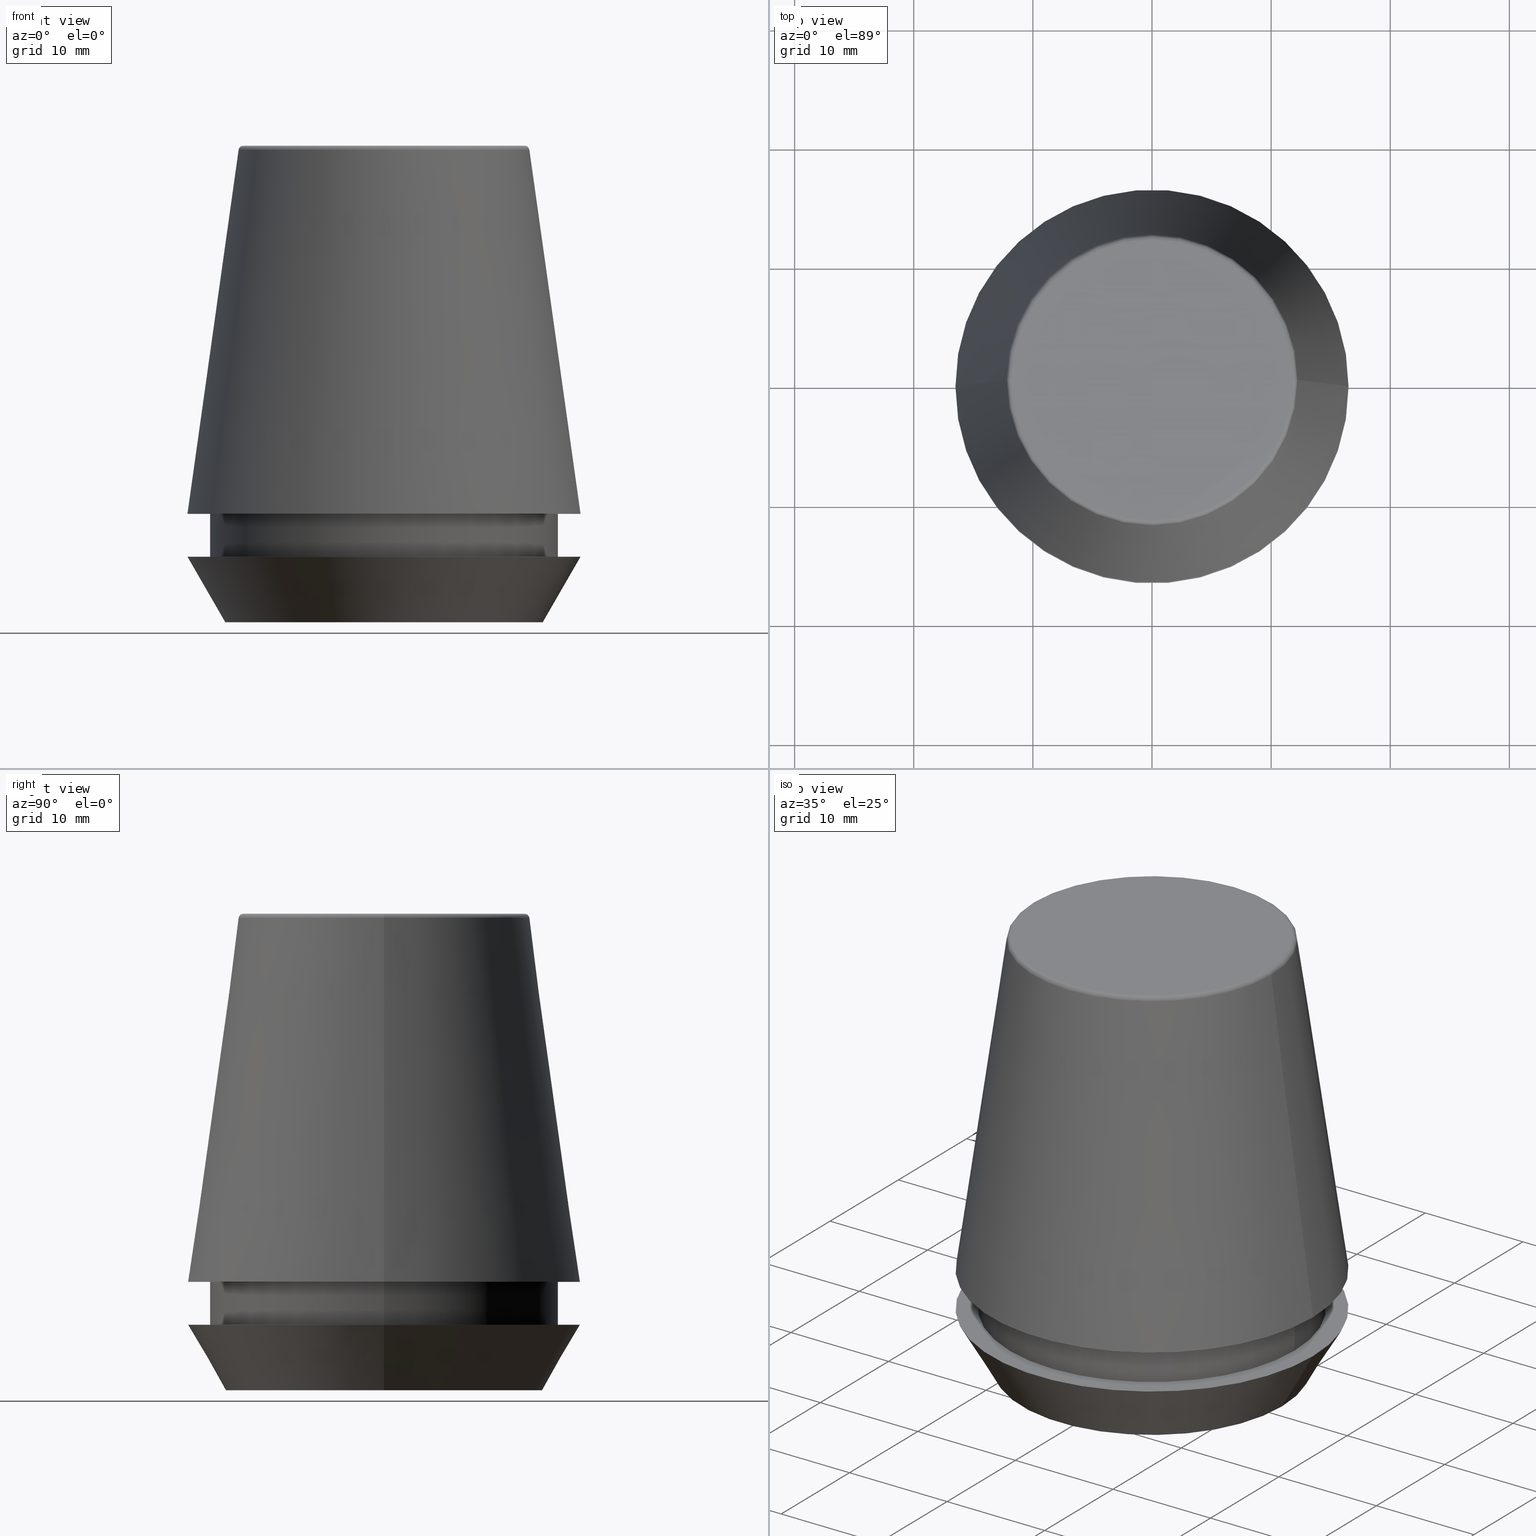
[diagram: canonical four-view strip — front | top / right | iso, engineering-drawing reading convention]
A machine part, canonical four-view strip (front | top / right | iso — engineering-drawing reading convention). The complete STEP part file that produces these views, byte-faithful:
ISO-10303-21;
HEADER;
FILE_DESCRIPTION (( 'STEP AP203' ),
    '1' );
FILE_NAME ('TAP COLLET ER 32G  9.0 X 7.1.STEP',
    '2019-04-09T11:11:06',
    ( '' ),
    ( '' ),
    'SwSTEP 2.0',
    'SolidWorks 2014',
    '' );
FILE_SCHEMA (( 'CONFIG_CONTROL_DESIGN' ));
ENDSEC;

DATA;
#1 = VECTOR ( 'NONE', #353, 1000.000000000000000 ) ;
#2 = APPLICATION_CONTEXT ( 'configuration controlled 3d designs of mechanical parts and assemblies' ) ;
#3 = CLOSED_SHELL ( 'NONE', ( #294, #45, #95, #28, #39, #220, #38, #128, #93, #314, #212, #369 ) ) ;
#4 = CC_DESIGN_DATE_AND_TIME_ASSIGNMENT ( #142, #26, ( #143 ) ) ;
#5 = CIRCLE ( 'NONE', #234, 0.4000000000000028000 ) ;
#6 = PERSON_AND_ORGANIZATION_ROLE ( 'creator' ) ;
#7 = ORIENTED_EDGE ( 'NONE', *, *, #133, .F. ) ;
#8 = EDGE_LOOP ( 'NONE', ( #245, #65, #60, #7 ) ) ;
#9 = DIRECTION ( 'NONE',  ( 0.0000000000000000000, 0.0000000000000000000, -1.000000000000000000 ) ) ;
#10 = ORIENTED_EDGE ( 'NONE', *, *, #16, .F. ) ;
#11 = CALENDAR_DATE ( 2019, 9, 4 ) ;
#12 = PERSON_AND_ORGANIZATION ( #82, #344 ) ;
#13 = DIRECTION ( 'NONE',  ( 0.0000000000000000000, 0.0000000000000000000, -1.000000000000000000 ) ) ;
#14 = CIRCLE ( 'NONE', #194, 16.50032537154048700 ) ;
#15 = CARTESIAN_POINT ( 'NONE',  ( 12.20600611160694300, 1.757755848304969800E-015, 39.65566924038402900 ) ) ;
#16 = EDGE_CURVE ( 'NONE', #104, #50, #190, .T. ) ;
#17 = VERTEX_POINT ( 'NONE', #300 ) ;
#18 = DIRECTION ( 'NONE',  ( -0.0000000000000000000, -0.0000000000000000000, 1.000000000000000000 ) ) ;
#19 = DIRECTION ( 'NONE',  ( -1.000000000000000000, 0.0000000000000000000, -0.0000000000000000000 ) ) ;
#20 = CONICAL_SURFACE ( 'NONE', #208, 16.50032537154048700, 0.1396263401595395900 ) ;
#21 = CARTESIAN_POINT ( 'NONE',  ( 16.50032537154048700, 2.020707065114692300E-015, 9.099999999999997900 ) ) ;
#22 = PRODUCT_DEFINITION ( 'UNKNOWN', '', #189, #362 ) ;
#23 = VERTEX_POINT ( 'NONE', #180 ) ;
#24 = SHAPE_DEFINITION_REPRESENTATION ( #201, #262 ) ;
#25 = LOCAL_TIME ( 16, 41, 6.000000000000000000, #377 ) ;
#26 = DATE_TIME_ROLE ( 'classification_date' ) ;
#27 = ORIENTED_EDGE ( 'NONE', *, *, #330, .T. ) ;
#28 = ADVANCED_FACE ( 'NONE', ( #169 ), #57, .T. ) ;
#29 = EDGE_CURVE ( 'NONE', #164, #100, #305, .T. ) ;
#30 = CIRCLE ( 'NONE', #213, 13.32457351945710200 ) ;
#31 = AXIS2_PLACEMENT_3D ( 'NONE', #118, #141, #171 ) ;
#32 = AXIS2_PLACEMENT_3D ( 'NONE', #78, #363, #298 ) ;
#33 = VERTEX_POINT ( 'NONE', #21 ) ;
#34 = FACE_OUTER_BOUND ( 'NONE', #54, .T. ) ;
#35 = CC_DESIGN_SECURITY_CLASSIFICATION ( #143, ( #189 ) ) ;
#36 = ORIENTED_EDGE ( 'NONE', *, *, #325, .F. ) ;
#37 = DIRECTION ( 'NONE',  ( -0.0000000000000000000, -0.0000000000000000000, 1.000000000000000000 ) ) ;
#38 = ADVANCED_FACE ( 'NONE', ( #139 ), #320, .T. ) ;
#39 = ADVANCED_FACE ( 'NONE', ( #269 ), #135, .F. ) ;
#40 = EDGE_LOOP ( 'NONE', ( #240, #134, #88, #168 ) ) ;
#41 = DIRECTION ( 'NONE',  ( 0.0000000000000000000, 0.0000000000000000000, 1.000000000000000000 ) ) ;
#42 = DIRECTION ( 'NONE',  ( 0.1391731009600586900, 1.704378926181473100E-017, -0.9902680687415712500 ) ) ;
#43 = DIRECTION ( 'NONE',  ( 1.000000000000000000, 0.0000000000000000000, 0.0000000000000000000 ) ) ;
#44 = EDGE_LOOP ( 'NONE', ( #205, #304 ) ) ;
#45 = ADVANCED_FACE ( 'NONE', ( #120 ), #20, .T. ) ;
#46 = CARTESIAN_POINT ( 'NONE',  ( 0.0000000000000000000, 0.0000000000000000000, 9.099999999999997900 ) ) ;
#47 = EDGE_LOOP ( 'NONE', ( #340, #368 ) ) ;
#48 = DIRECTION ( 'NONE',  ( 1.000000000000000000, 0.0000000000000000000, 0.0000000000000000000 ) ) ;
#49 = DIRECTION ( 'NONE',  ( 1.000000000000000000, 0.0000000000000000000, 0.0000000000000000000 ) ) ;
#50 = VERTEX_POINT ( 'NONE', #53 ) ;
#51 = CARTESIAN_POINT ( 'NONE',  ( 16.50000000000000000, 0.0000000000000000000, 5.500000000000005300 ) ) ;
#52 = CC_DESIGN_APPROVAL ( #98, ( #143 ) ) ;
#53 = CARTESIAN_POINT ( 'NONE',  ( 13.32457351945710200, 0.0000000000000000000, 0.0000000000000000000 ) ) ;
#54 = EDGE_LOOP ( 'NONE', ( #115, #10 ) ) ;
#55 = DIRECTION ( 'NONE',  ( 1.000000000000000000, 0.0000000000000000000, 0.0000000000000000000 ) ) ;
#56 = CC_DESIGN_PERSON_AND_ORGANIZATION_ASSIGNMENT ( #68, #198, ( #143 ) ) ;
#57 = CONICAL_SURFACE ( 'NONE', #174, 13.32457351945710200, 0.5235987755982927100 ) ;
#58 = LINE ( 'NONE', #74, #66 ) ;
#59 = APPROVAL_ROLE ( '' ) ;
#60 = ORIENTED_EDGE ( 'NONE', *, *, #67, .F. ) ;
#61 = APPROVAL_PERSON_ORGANIZATION ( #12, #98, #59 ) ;
#62 = EDGE_CURVE ( 'NONE', #100, #164, #341, .T. ) ;
#63 =( GEOMETRIC_REPRESENTATION_CONTEXT ( 3 ) GLOBAL_UNCERTAINTY_ASSIGNED_CONTEXT ( ( #108 ) ) GLOBAL_UNIT_ASSIGNED_CONTEXT ( ( #96, #173, #346 ) ) REPRESENTATION_CONTEXT ( 'NONE', 'WORKASPACE' ) );
#64 = DIRECTION ( 'NONE',  ( -0.0000000000000000000, -0.0000000000000000000, 1.000000000000000000 ) ) ;
#65 = ORIENTED_EDGE ( 'NONE', *, *, #325, .T. ) ;
#66 = VECTOR ( 'NONE', #42, 1000.000000000000000 ) ;
#67 = EDGE_CURVE ( 'NONE', #84, #147, #359, .T. ) ;
#68 = PERSON_AND_ORGANIZATION ( #82, #344 ) ;
#69 = MECHANICAL_CONTEXT ( 'NONE', #97, 'mechanical' ) ;
#70 = CARTESIAN_POINT ( 'NONE',  ( 0.0000000000000000000, 0.0000000000000000000, 9.099999999999997900 ) ) ;
#71 = FACE_OUTER_BOUND ( 'NONE', #308, .T. ) ;
#72 = AXIS2_PLACEMENT_3D ( 'NONE', #181, #307, #48 ) ;
#73 = CARTESIAN_POINT ( 'NONE',  ( 0.0000000000000000000, 0.0000000000000000000, 0.0000000000000000000 ) ) ;
#74 = CARTESIAN_POINT ( 'NONE',  ( 16.50032537154048700, 2.020707065114692300E-015, 9.099999999999997900 ) ) ;
#75 = CARTESIAN_POINT ( 'NONE',  ( 13.32457351945710200, 0.0000000000000000000, 0.0000000000000000000 ) ) ;
#76 = LOCAL_TIME ( 16, 41, 6.000000000000000000, #132 ) ;
#77 = TOROIDAL_SURFACE ( 'NONE', #123, 11.80989888411031400, 0.4000000000000026900 ) ;
#78 = CARTESIAN_POINT ( 'NONE',  ( 0.0000000000000000000, 0.0000000000000000000, 101.8074564848000400 ) ) ;
#79 = PLANE ( 'NONE',  #207 ) ;
#80 = DIRECTION ( 'NONE',  ( -1.000000000000000000, 0.0000000000000000000, 0.0000000000000000000 ) ) ;
#81 = EDGE_LOOP ( 'NONE', ( #309, #374 ) ) ;
#82 = PERSON ( 'UNSPECIFIED', 'UNSPECIFIED', 'UNSPECIFIED', ('UNSPECIFIED'), ('UNSPECIFIED'), ('UNSPECIFIED') ) ;
#83 = CC_DESIGN_PERSON_AND_ORGANIZATION_ASSIGNMENT ( #127, #217, ( #352 ) ) ;
#84 = VERTEX_POINT ( 'NONE', #51 ) ;
#85 = LOCAL_TIME ( 16, 41, 6.000000000000000000, #291 ) ;
#86 = CIRCLE ( 'NONE', #31, 14.60000000000000000 ) ;
#87 = DATE_AND_TIME ( #195, #170 ) ;
#88 = ORIENTED_EDGE ( 'NONE', *, *, #287, .F. ) ;
#89 = CARTESIAN_POINT ( 'NONE',  ( 0.0000000000000000000, 0.0000000000000000000, 9.099999999999997900 ) ) ;
#90 = APPROVAL ( #286, 'UNSPECIFIED' ) ;
#91 = AXIS2_PLACEMENT_3D ( 'NONE', #157, #41, #175 ) ;
#92 = LINE ( 'NONE', #75, #144 ) ;
#93 = ADVANCED_FACE ( 'NONE', ( #71 ), #253, .T. ) ;
#94 = CIRCLE ( 'NONE', #265, 16.50032537154048700 ) ;
#95 = ADVANCED_FACE ( 'NONE', ( #290 ), #302, .T. ) ;
#96 =( LENGTH_UNIT ( ) NAMED_UNIT ( * ) SI_UNIT ( .MILLI., .METRE. ) );
#97 = APPLICATION_CONTEXT ( 'configuration controlled 3d designs of mechanical parts and assemblies' ) ;
#98 = APPROVAL ( #237, 'UNSPECIFIED' ) ;
#99 = MANIFOLD_SOLID_BREP ( 'Revolve1', #3 ) ;
#100 = VERTEX_POINT ( 'NONE', #15 ) ;
#101 = EDGE_LOOP ( 'NONE', ( #367, #347, #331, #295 ) ) ;
#102 = DIRECTION ( 'NONE',  ( -1.000000000000000000, 0.0000000000000000000, 0.0000000000000000000 ) ) ;
#103 = VECTOR ( 'NONE', #373, 999.9999999999998900 ) ;
#104 = VERTEX_POINT ( 'NONE', #261 ) ;
#105 = ORIENTED_EDGE ( 'NONE', *, *, #238, .T. ) ;
#106 = DIRECTION ( 'NONE',  ( 1.000000000000000000, 0.0000000000000000000, 0.0000000000000000000 ) ) ;
#107 = DIRECTION ( 'NONE',  ( 0.0000000000000000000, 0.0000000000000000000, -1.000000000000000000 ) ) ;
#108 = UNCERTAINTY_MEASURE_WITH_UNIT (LENGTH_MEASURE( 1.000000000000000100E-005 ), #96, 'distance_accuracy_value', 'NONE');
#109 = VERTEX_POINT ( 'NONE', #188 ) ;
#110 = DIRECTION ( 'NONE',  ( 1.000000000000000000, 0.0000000000000000000, 0.0000000000000000000 ) ) ;
#111 = ORIENTED_EDGE ( 'NONE', *, *, #16, .T. ) ;
#112 = APPROVAL_DATE_TIME ( #136, #90 ) ;
#113 = CIRCLE ( 'NONE', #364, 14.60000000000000000 ) ;
#114 = PERSON_AND_ORGANIZATION_ROLE ( 'creator' ) ;
#115 = ORIENTED_EDGE ( 'NONE', *, *, #246, .F. ) ;
#116 = ORIENTED_EDGE ( 'NONE', *, *, #257, .F. ) ;
#117 = TOROIDAL_SURFACE ( 'NONE', #72, 11.80989888411031400, 0.4000000000000026900 ) ;
#118 = CARTESIAN_POINT ( 'NONE',  ( 0.0000000000000000000, 0.0000000000000000000, 5.500000000000005300 ) ) ;
#119 = PERSON_AND_ORGANIZATION ( #82, #344 ) ;
#120 = FACE_OUTER_BOUND ( 'NONE', #101, .T. ) ;
#121 = DIRECTION ( 'NONE',  ( 0.0000000000000000000, 0.0000000000000000000, -1.000000000000000000 ) ) ;
#122 = CARTESIAN_POINT ( 'NONE',  ( -11.80989888411031400, 1.446295486667959300E-015, 39.60000000000000100 ) ) ;
#123 = AXIS2_PLACEMENT_3D ( 'NONE', #385, #209, #260 ) ;
#124 = DIRECTION ( 'NONE',  ( -0.0000000000000000000, -0.0000000000000000000, 1.000000000000000000 ) ) ;
#125 = ORIENTED_EDGE ( 'NONE', *, *, #306, .F. ) ;
#126 = DIRECTION ( 'NONE',  ( 1.000000000000000000, 0.0000000000000000000, 0.0000000000000000000 ) ) ;
#127 = PERSON_AND_ORGANIZATION ( #82, #344 ) ;
#128 = ADVANCED_FACE ( 'NONE', ( #178, #258 ), #345, .F. ) ;
#129 = CARTESIAN_POINT ( 'NONE',  ( -11.80989888411031400, 1.470550059081603400E-015, 40.00000000000000700 ) ) ;
#130 = CARTESIAN_POINT ( 'NONE',  ( 0.0000000000000000000, 16.50000000000000000, 5.500000000000002700 ) ) ;
#131 = CC_DESIGN_APPROVAL ( #90, ( #22 ) ) ;
#132 = COORDINATED_UNIVERSAL_TIME_OFFSET ( 5, 30, .AHEAD. ) ;
#133 = EDGE_CURVE ( 'NONE', #50, #84, #92, .T. ) ;
#134 = ORIENTED_EDGE ( 'NONE', *, *, #248, .T. ) ;
#135 = PLANE ( 'NONE',  #200 ) ;
#136 = DATE_AND_TIME ( #137, #283 ) ;
#137 = CALENDAR_DATE ( 2019, 9, 4 ) ;
#138 = CC_DESIGN_APPROVAL ( #275, ( #189 ) ) ;
#139 = FACE_OUTER_BOUND ( 'NONE', #357, .T. ) ;
#140 = CIRCLE ( 'NONE', #243, 11.80989888411031400 ) ;
#141 = DIRECTION ( 'NONE',  ( -0.0000000000000000000, -0.0000000000000000000, 1.000000000000000000 ) ) ;
#142 = DATE_AND_TIME ( #155, #76 ) ;
#143 = SECURITY_CLASSIFICATION ( '', '', #375 ) ;
#144 = VECTOR ( 'NONE', #292, 999.9999999999998900 ) ;
#145 = DIRECTION ( 'NONE',  ( 0.0000000000000000000, -1.000000000000000000, 0.0000000000000000000 ) ) ;
#146 = COORDINATED_UNIVERSAL_TIME_OFFSET ( 5, 30, .AHEAD. ) ;
#147 = VERTEX_POINT ( 'NONE', #227 ) ;
#148 = DIRECTION ( 'NONE',  ( -1.000000000000000000, 1.224646799147352500E-016, 0.0000000000000000000 ) ) ;
#149 = CC_DESIGN_PERSON_AND_ORGANIZATION_ASSIGNMENT ( #335, #165, ( #189 ) ) ;
#150 = ORIENTED_EDGE ( 'NONE', *, *, #319, .F. ) ;
#151 = DIRECTION ( 'NONE',  ( 1.000000000000000000, 0.0000000000000000000, 0.0000000000000000000 ) ) ;
#152 = VECTOR ( 'NONE', #223, 1000.000000000000000 ) ;
#153 = ORIENTED_EDGE ( 'NONE', *, *, #160, .F. ) ;
#154 = AXIS2_PLACEMENT_3D ( 'NONE', #46, #9, #102 ) ;
#155 = CALENDAR_DATE ( 2019, 9, 4 ) ;
#156 = CIRCLE ( 'NONE', #297, 14.60000000000000000 ) ;
#157 = CARTESIAN_POINT ( 'NONE',  ( 0.0000000000000000000, 0.0000000000000000000, 0.0000000000000000000 ) ) ;
#158 = EDGE_LOOP ( 'NONE', ( #150, #167, #105, #384 ) ) ;
#159 = DIRECTION ( 'NONE',  ( -0.0000000000000000000, -0.0000000000000000000, 1.000000000000000000 ) ) ;
#160 = EDGE_CURVE ( 'NONE', #23, #343, #113, .T. ) ;
#161 = DIRECTION ( 'NONE',  ( -0.0000000000000000000, -0.0000000000000000000, 1.000000000000000000 ) ) ;
#162 = CC_DESIGN_PERSON_AND_ORGANIZATION_ASSIGNMENT ( #387, #114, ( #189 ) ) ;
#163 = DIRECTION ( 'NONE',  ( 0.0000000000000000000, 0.0000000000000000000, -1.000000000000000000 ) ) ;
#164 = VERTEX_POINT ( 'NONE', #226 ) ;
#165 = PERSON_AND_ORGANIZATION_ROLE ( 'design_supplier' ) ;
#166 = PRODUCT_RELATED_PRODUCT_CATEGORY ( 'detail', '', ( #352 ) ) ;
#167 = ORIENTED_EDGE ( 'NONE', *, *, #29, .F. ) ;
#168 = ORIENTED_EDGE ( 'NONE', *, *, #379, .F. ) ;
#169 = FACE_OUTER_BOUND ( 'NONE', #8, .T. ) ;
#170 = LOCAL_TIME ( 16, 41, 6.000000000000000000, #211 ) ;
#171 = DIRECTION ( 'NONE',  ( 1.000000000000000000, 0.0000000000000000000, 0.0000000000000000000 ) ) ;
#172 = LINE ( 'NONE', #336, #152 ) ;
#173 =( NAMED_UNIT ( * ) PLANE_ANGLE_UNIT ( ) SI_UNIT ( $, .RADIAN. ) );
#174 = AXIS2_PLACEMENT_3D ( 'NONE', #270, #303, #204 ) ;
#175 = DIRECTION ( 'NONE',  ( 1.000000000000000000, 0.0000000000000000000, 0.0000000000000000000 ) ) ;
#176 = DIRECTION ( 'NONE',  ( -0.0000000000000000000, -0.0000000000000000000, 1.000000000000000000 ) ) ;
#177 = CIRCLE ( 'NONE', #327, 16.50000000000000000 ) ;
#178 = FACE_BOUND ( 'NONE', #279, .T. ) ;
#179 = DIRECTION ( 'NONE',  ( 1.000000000000000000, 0.0000000000000000000, 0.0000000000000000000 ) ) ;
#180 = CARTESIAN_POINT ( 'NONE',  ( 14.60000000000000000, 0.0000000000000000000, 5.500000000000005300 ) ) ;
#181 = CARTESIAN_POINT ( 'NONE',  ( 0.0000000000000000000, 0.0000000000000000000, 39.60000000000000100 ) ) ;
#182 = CC_DESIGN_PERSON_AND_ORGANIZATION_ASSIGNMENT ( #247, #6, ( #22 ) ) ;
#183 = APPROVAL_ROLE ( '' ) ;
#184 = ORIENTED_EDGE ( 'NONE', *, *, #160, .T. ) ;
#185 = AXIS2_PLACEMENT_3D ( 'NONE', #328, #266, #55 ) ;
#186 = ORIENTED_EDGE ( 'NONE', *, *, #248, .F. ) ;
#187 = AXIS2_PLACEMENT_3D ( 'NONE', #73, #244, #110 ) ;
#188 = CARTESIAN_POINT ( 'NONE',  ( -16.50032537154048700, 0.0000000000000000000, 9.099999999999997900 ) ) ;
#189 = PRODUCT_DEFINITION_FORMATION_WITH_SPECIFIED_SOURCE ( 'ANY', '', #352, .NOT_KNOWN. ) ;
#190 = CIRCLE ( 'NONE', #187, 13.32457351945710200 ) ;
#191 = DIRECTION ( 'NONE',  ( -0.0000000000000000000, -0.0000000000000000000, 1.000000000000000000 ) ) ;
#192 = LINE ( 'NONE', #338, #277 ) ;
#193 = DIRECTION ( 'NONE',  ( 0.0000000000000000000, -0.0000000000000000000, 1.000000000000000000 ) ) ;
#194 = AXIS2_PLACEMENT_3D ( 'NONE', #249, #37, #285 ) ;
#195 = CALENDAR_DATE ( 2019, 9, 4 ) ;
#196 = DIRECTION ( 'NONE',  ( 1.000000000000000000, 0.0000000000000000000, 0.0000000000000000000 ) ) ;
#197 = CARTESIAN_POINT ( 'NONE',  ( -14.60000000000000000, 1.787984326755135800E-015, 5.500000000000005300 ) ) ;
#198 = PERSON_AND_ORGANIZATION_ROLE ( 'classification_officer' ) ;
#199 = VERTEX_POINT ( 'NONE', #129 ) ;
#200 = AXIS2_PLACEMENT_3D ( 'NONE', #372, #163, #19 ) ;
#201 = PRODUCT_DEFINITION_SHAPE ( 'NONE', 'NONE',  #22 ) ;
#202 = ORIENTED_EDGE ( 'NONE', *, *, #241, .T. ) ;
#203 = DATE_TIME_ROLE ( 'creation_date' ) ;
#204 = DIRECTION ( 'NONE',  ( 1.000000000000000000, 0.0000000000000000000, 0.0000000000000000000 ) ) ;
#205 = ORIENTED_EDGE ( 'NONE', *, *, #280, .F. ) ;
#206 = CALENDAR_DATE ( 2019, 9, 4 ) ;
#207 = AXIS2_PLACEMENT_3D ( 'NONE', #278, #193, #264 ) ;
#208 = AXIS2_PLACEMENT_3D ( 'NONE', #348, #107, #80 ) ;
#209 = DIRECTION ( 'NONE',  ( -0.0000000000000000000, -0.0000000000000000000, 1.000000000000000000 ) ) ;
#210 = CARTESIAN_POINT ( 'NONE',  ( 0.0000000000000000000, 0.0000000000000000000, 5.500000000000005300 ) ) ;
#211 = COORDINATED_UNIVERSAL_TIME_OFFSET ( 5, 30, .AHEAD. ) ;
#212 = ADVANCED_FACE ( 'NONE', ( #381 ), #259, .T. ) ;
#213 = AXIS2_PLACEMENT_3D ( 'NONE', #315, #176, #179 ) ;
#214 = DIRECTION ( 'NONE',  ( -0.0000000000000000000, -0.0000000000000000000, 1.000000000000000000 ) ) ;
#215 = AXIS2_PLACEMENT_3D ( 'NONE', #324, #159, #365 ) ;
#216 = ORIENTED_EDGE ( 'NONE', *, *, #241, .F. ) ;
#217 = PERSON_AND_ORGANIZATION_ROLE ( 'design_owner' ) ;
#218 = DIRECTION ( 'NONE',  ( 1.000000000000000000, 0.0000000000000000000, 0.0000000000000000000 ) ) ;
#219 = ORIENTED_EDGE ( 'NONE', *, *, #330, .F. ) ;
#220 = ADVANCED_FACE ( 'NONE', ( #34 ), #256, .F. ) ;
#221 = CARTESIAN_POINT ( 'NONE',  ( 0.0000000000000000000, 0.0000000000000000000, 9.099999999999997900 ) ) ;
#222 = CIRCLE ( 'NONE', #358, 11.80989888411031400 ) ;
#223 = DIRECTION ( 'NONE',  ( -0.0000000000000000000, -0.0000000000000000000, 1.000000000000000000 ) ) ;
#224 = DIRECTION ( 'NONE',  ( -0.0000000000000000000, -0.0000000000000000000, 1.000000000000000000 ) ) ;
#225 = AXIS2_PLACEMENT_3D ( 'NONE', #233, #64, #196 ) ;
#226 = CARTESIAN_POINT ( 'NONE',  ( -12.20600611160694300, 0.0000000000000000000, 39.65566924038402900 ) ) ;
#227 = CARTESIAN_POINT ( 'NONE',  ( -16.50000000000000000, 2.020667218593133100E-015, 5.500000000000005300 ) ) ;
#228 = DIRECTION ( 'NONE',  ( 1.000000000000000000, 0.0000000000000000000, 0.0000000000000000000 ) ) ;
#229 = AXIS2_PLACEMENT_3D ( 'NONE', #382, #321, #218 ) ;
#230 = ORIENTED_EDGE ( 'NONE', *, *, #133, .T. ) ;
#231 = ORIENTED_EDGE ( 'NONE', *, *, #342, .F. ) ;
#232 = ORIENTED_EDGE ( 'NONE', *, *, #29, .T. ) ;
#233 = CARTESIAN_POINT ( 'NONE',  ( 0.0000000000000000000, 0.0000000000000000000, 0.0000000000000000000 ) ) ;
#234 = AXIS2_PLACEMENT_3D ( 'NONE', #122, #339, #148 ) ;
#235 = AXIS2_PLACEMENT_3D ( 'NONE', #322, #191, #49 ) ;
#236 = ORIENTED_EDGE ( 'NONE', *, *, #284, .T. ) ;
#237 = APPROVAL_STATUS ( 'not_yet_approved' ) ;
#238 = EDGE_CURVE ( 'NONE', #164, #109, #272, .T. ) ;
#239 = FACE_OUTER_BOUND ( 'NONE', #44, .T. ) ;
#240 = ORIENTED_EDGE ( 'NONE', *, *, #62, .T. ) ;
#241 = EDGE_CURVE ( 'NONE', #343, #17, #172, .T. ) ;
#242 = APPROVAL_STATUS ( 'not_yet_approved' ) ;
#243 = AXIS2_PLACEMENT_3D ( 'NONE', #317, #289, #151 ) ;
#244 = DIRECTION ( 'NONE',  ( -0.0000000000000000000, -0.0000000000000000000, 1.000000000000000000 ) ) ;
#245 = ORIENTED_EDGE ( 'NONE', *, *, #246, .T. ) ;
#246 = EDGE_CURVE ( 'NONE', #50, #104, #30, .T. ) ;
#247 = PERSON_AND_ORGANIZATION ( #82, #344 ) ;
#248 = EDGE_CURVE ( 'NONE', #164, #199, #5, .T. ) ;
#249 = CARTESIAN_POINT ( 'NONE',  ( 0.0000000000000000000, 0.0000000000000000000, 9.099999999999997900 ) ) ;
#250 = ORIENTED_EDGE ( 'NONE', *, *, #284, .F. ) ;
#251 = APPLICATION_PROTOCOL_DEFINITION ( 'international standard', 'config_control_design', 1994, #2 ) ;
#252 = AXIS2_PLACEMENT_3D ( 'NONE', #221, #255, #43 ) ;
#253 = CYLINDRICAL_SURFACE ( 'NONE', #371, 14.60000000000000000 ) ;
#254 = ORIENTED_EDGE ( 'NONE', *, *, #273, .F. ) ;
#255 = DIRECTION ( 'NONE',  ( -0.0000000000000000000, -0.0000000000000000000, 1.000000000000000000 ) ) ;
#256 = PLANE ( 'NONE',  #229 ) ;
#257 = EDGE_CURVE ( 'NONE', #323, #17, #329, .T. ) ;
#258 = FACE_OUTER_BOUND ( 'NONE', #81, .T. ) ;
#259 = CONICAL_SURFACE ( 'NONE', #154, 16.50032537154048700, 0.1396263401595395900 ) ;
#260 = DIRECTION ( 'NONE',  ( 1.000000000000000000, 0.0000000000000000000, 0.0000000000000000000 ) ) ;
#261 = CARTESIAN_POINT ( 'NONE',  ( -13.32457351945710200, 1.826228424826902600E-015, 0.0000000000000000000 ) ) ;
#262 = ADVANCED_BREP_SHAPE_REPRESENTATION ( 'TAP COLLET ER 32G  9.0 X 7.1', ( #99, #91 ), #63 ) ;
#263 = CARTESIAN_POINT ( 'NONE',  ( 0.0000000000000000000, 0.0000000000000000000, 101.8074564848000400 ) ) ;
#264 = DIRECTION ( 'NONE',  ( 1.000000000000000000, 0.0000000000000000000, 0.0000000000000000000 ) ) ;
#265 = AXIS2_PLACEMENT_3D ( 'NONE', #70, #386, #333 ) ;
#266 = DIRECTION ( 'NONE',  ( -0.0000000000000000000, -0.0000000000000000000, 1.000000000000000000 ) ) ;
#267 = ORIENTED_EDGE ( 'NONE', *, *, #257, .T. ) ;
#268 = CARTESIAN_POINT ( 'NONE',  ( 11.80989888411031400, 0.0000000000000000000, 40.00000000000000700 ) ) ;
#269 = FACE_OUTER_BOUND ( 'NONE', #47, .T. ) ;
#270 = CARTESIAN_POINT ( 'NONE',  ( 0.0000000000000000000, 0.0000000000000000000, 0.0000000000000000000 ) ) ;
#271 = APPROVAL_DATE_TIME ( #360, #275 ) ;
#272 = LINE ( 'NONE', #361, #1 ) ;
#273 = EDGE_CURVE ( 'NONE', #199, #354, #140, .T. ) ;
#274 = ORIENTED_EDGE ( 'NONE', *, *, #379, .T. ) ;
#275 = APPROVAL ( #242, 'UNSPECIFIED' ) ;
#276 = APPROVAL_ROLE ( '' ) ;
#277 = VECTOR ( 'NONE', #18, 1000.000000000000000 ) ;
#278 = CARTESIAN_POINT ( 'NONE',  ( 0.0000000000000000000, 16.50032537154048700, 9.099999999999999600 ) ) ;
#279 = EDGE_LOOP ( 'NONE', ( #153, #219 ) ) ;
#280 = EDGE_CURVE ( 'NONE', #109, #33, #94, .T. ) ;
#281 = DIRECTION ( 'NONE',  ( -0.0000000000000000000, -0.0000000000000000000, 1.000000000000000000 ) ) ;
#282 = FACE_OUTER_BOUND ( 'NONE', #40, .T. ) ;
#283 = LOCAL_TIME ( 16, 41, 6.000000000000000000, #146 ) ;
#284 = EDGE_CURVE ( 'NONE', #17, #323, #156, .T. ) ;
#285 = DIRECTION ( 'NONE',  ( 1.000000000000000000, 0.0000000000000000000, 0.0000000000000000000 ) ) ;
#286 = APPROVAL_STATUS ( 'not_yet_approved' ) ;
#287 = EDGE_CURVE ( 'NONE', #354, #199, #222, .T. ) ;
#288 = ORIENTED_EDGE ( 'NONE', *, *, #306, .T. ) ;
#289 = DIRECTION ( 'NONE',  ( -0.0000000000000000000, -0.0000000000000000000, 1.000000000000000000 ) ) ;
#290 = FACE_OUTER_BOUND ( 'NONE', #370, .T. ) ;
#291 = COORDINATED_UNIVERSAL_TIME_OFFSET ( 5, 30, .AHEAD. ) ;
#292 = DIRECTION ( 'NONE',  ( 0.4999999999999947300, 0.0000000000000000000, 0.8660254037844418200 ) ) ;
#293 = DIRECTION ( 'NONE',  ( -1.000000000000000000, 0.0000000000000000000, -0.0000000000000000000 ) ) ;
#294 = ADVANCED_FACE ( 'NONE', ( #282 ), #117, .T. ) ;
#295 = ORIENTED_EDGE ( 'NONE', *, *, #238, .F. ) ;
#296 = CARTESIAN_POINT ( 'NONE',  ( 11.80989888411031400, 0.0000000000000000000, 39.60000000000000100 ) ) ;
#297 = AXIS2_PLACEMENT_3D ( 'NONE', #89, #124, #318 ) ;
#298 = DIRECTION ( 'NONE',  ( 1.000000000000000000, 0.0000000000000000000, 0.0000000000000000000 ) ) ;
#299 = APPLICATION_PROTOCOL_DEFINITION ( 'international standard', 'config_control_design', 1994, #97 ) ;
#300 = CARTESIAN_POINT ( 'NONE',  ( -14.60000000000000000, 1.787984326755135800E-015, 9.099999999999997900 ) ) ;
#301 = DATE_AND_TIME ( #206, #85 ) ;
#302 = CYLINDRICAL_SURFACE ( 'NONE', #32, 14.60000000000000000 ) ;
#303 = DIRECTION ( 'NONE',  ( -0.0000000000000000000, -0.0000000000000000000, 1.000000000000000000 ) ) ;
#304 = ORIENTED_EDGE ( 'NONE', *, *, #376, .F. ) ;
#305 = CIRCLE ( 'NONE', #185, 12.20600611160694300 ) ;
#306 = EDGE_CURVE ( 'NONE', #23, #323, #192, .T. ) ;
#307 = DIRECTION ( 'NONE',  ( -0.0000000000000000000, -0.0000000000000000000, 1.000000000000000000 ) ) ;
#308 = EDGE_LOOP ( 'NONE', ( #216, #27, #288, #250 ) ) ;
#309 = ORIENTED_EDGE ( 'NONE', *, *, #67, .T. ) ;
#310 = AXIS2_PLACEMENT_3D ( 'NONE', #296, #145, #121 ) ;
#311 = LINE ( 'NONE', #326, #103 ) ;
#312 = CARTESIAN_POINT ( 'NONE',  ( 0.0000000000000000000, 0.0000000000000000000, 5.500000000000005300 ) ) ;
#313 = DIRECTION ( 'NONE',  ( 1.000000000000000000, 0.0000000000000000000, 0.0000000000000000000 ) ) ;
#314 = ADVANCED_FACE ( 'NONE', ( #239, #378 ), #79, .F. ) ;
#315 = CARTESIAN_POINT ( 'NONE',  ( 0.0000000000000000000, 0.0000000000000000000, 0.0000000000000000000 ) ) ;
#316 = EDGE_LOOP ( 'NONE', ( #186, #232, #274, #254 ) ) ;
#317 = CARTESIAN_POINT ( 'NONE',  ( 0.0000000000000000000, 0.0000000000000000000, 40.00000000000000700 ) ) ;
#318 = DIRECTION ( 'NONE',  ( 1.000000000000000000, 0.0000000000000000000, 0.0000000000000000000 ) ) ;
#319 = EDGE_CURVE ( 'NONE', #100, #33, #58, .T. ) ;
#320 = CONICAL_SURFACE ( 'NONE', #225, 13.32457351945710200, 0.5235987755982927100 ) ;
#321 = DIRECTION ( 'NONE',  ( 0.0000000000000000000, -0.0000000000000000000, 1.000000000000000000 ) ) ;
#322 = CARTESIAN_POINT ( 'NONE',  ( 0.0000000000000000000, 0.0000000000000000000, 5.500000000000005300 ) ) ;
#323 = VERTEX_POINT ( 'NONE', #350 ) ;
#324 = CARTESIAN_POINT ( 'NONE',  ( 0.0000000000000000000, 0.0000000000000000000, 39.65566924038402900 ) ) ;
#325 = EDGE_CURVE ( 'NONE', #104, #147, #311, .T. ) ;
#326 = CARTESIAN_POINT ( 'NONE',  ( -13.32457351945710200, 1.631789631060672300E-015, 0.0000000000000000000 ) ) ;
#327 = AXIS2_PLACEMENT_3D ( 'NONE', #312, #281, #313 ) ;
#328 = CARTESIAN_POINT ( 'NONE',  ( 0.0000000000000000000, 0.0000000000000000000, 39.65566924038402900 ) ) ;
#329 = CIRCLE ( 'NONE', #252, 14.60000000000000000 ) ;
#330 = EDGE_CURVE ( 'NONE', #343, #23, #86, .T. ) ;
#331 = ORIENTED_EDGE ( 'NONE', *, *, #376, .T. ) ;
#332 = PERSON_AND_ORGANIZATION ( #82, #344 ) ;
#333 = DIRECTION ( 'NONE',  ( 1.000000000000000000, 0.0000000000000000000, 0.0000000000000000000 ) ) ;
#334 = APPROVAL_PERSON_ORGANIZATION ( #332, #275, #276 ) ;
#335 = PERSON_AND_ORGANIZATION ( #82, #344 ) ;
#336 = CARTESIAN_POINT ( 'NONE',  ( -14.60000000000000000, 1.787984326755135800E-015, 101.8074564848000400 ) ) ;
#337 = APPROVAL_PERSON_ORGANIZATION ( #119, #90, #183 ) ;
#338 = CARTESIAN_POINT ( 'NONE',  ( 14.60000000000000000, 0.0000000000000000000, 101.8074564848000400 ) ) ;
#339 = DIRECTION ( 'NONE',  ( 1.224646799147353200E-016, 1.000000000000000000, 0.0000000000000000000 ) ) ;
#340 = ORIENTED_EDGE ( 'NONE', *, *, #287, .T. ) ;
#341 = CIRCLE ( 'NONE', #215, 12.20600611160694300 ) ;
#342 = EDGE_CURVE ( 'NONE', #147, #84, #177, .T. ) ;
#343 = VERTEX_POINT ( 'NONE', #197 ) ;
#344 = ORGANIZATION ( 'UNSPECIFIED', 'UNSPECIFIED', '' ) ;
#345 = PLANE ( 'NONE',  #366 ) ;
#346 =( NAMED_UNIT ( * ) SI_UNIT ( $, .STERADIAN. ) SOLID_ANGLE_UNIT ( ) );
#347 = ORIENTED_EDGE ( 'NONE', *, *, #319, .T. ) ;
#348 = CARTESIAN_POINT ( 'NONE',  ( 0.0000000000000000000, 0.0000000000000000000, 9.099999999999997900 ) ) ;
#349 = FACE_OUTER_BOUND ( 'NONE', #316, .T. ) ;
#350 = CARTESIAN_POINT ( 'NONE',  ( 14.60000000000000000, 0.0000000000000000000, 9.099999999999997900 ) ) ;
#351 = CC_DESIGN_DATE_AND_TIME_ASSIGNMENT ( #301, #203, ( #22 ) ) ;
#352 = PRODUCT ( 'TAP COLLET ER 32G  9.0 X 7.1', 'TAP COLLET ER 32G  9.0 X 7.1', '', ( #69 ) ) ;
#353 = DIRECTION ( 'NONE',  ( -0.1391731009600586900, 0.0000000000000000000, -0.9902680687415712500 ) ) ;
#354 = VERTEX_POINT ( 'NONE', #268 ) ;
#355 = APPROVAL_DATE_TIME ( #87, #98 ) ;
#356 = CARTESIAN_POINT ( 'NONE',  ( 0.0000000000000000000, 0.0000000000000000000, 40.00000000000000700 ) ) ;
#357 = EDGE_LOOP ( 'NONE', ( #36, #111, #230, #231 ) ) ;
#358 = AXIS2_PLACEMENT_3D ( 'NONE', #356, #214, #228 ) ;
#359 = CIRCLE ( 'NONE', #235, 16.50000000000000000 ) ;
#360 = DATE_AND_TIME ( #11, #25 ) ;
#361 = CARTESIAN_POINT ( 'NONE',  ( -16.50032537154048700, 0.0000000000000000000, 9.099999999999997900 ) ) ;
#362 = DESIGN_CONTEXT ( 'detailed design', #2, 'design' ) ;
#363 = DIRECTION ( 'NONE',  ( -0.0000000000000000000, -0.0000000000000000000, 1.000000000000000000 ) ) ;
#364 = AXIS2_PLACEMENT_3D ( 'NONE', #210, #224, #126 ) ;
#365 = DIRECTION ( 'NONE',  ( 1.000000000000000000, 0.0000000000000000000, 0.0000000000000000000 ) ) ;
#366 = AXIS2_PLACEMENT_3D ( 'NONE', #130, #13, #293 ) ;
#367 = ORIENTED_EDGE ( 'NONE', *, *, #62, .F. ) ;
#368 = ORIENTED_EDGE ( 'NONE', *, *, #273, .T. ) ;
#369 = ADVANCED_FACE ( 'NONE', ( #349 ), #77, .T. ) ;
#370 = EDGE_LOOP ( 'NONE', ( #184, #202, #116, #125 ) ) ;
#371 = AXIS2_PLACEMENT_3D ( 'NONE', #263, #161, #106 ) ;
#372 = CARTESIAN_POINT ( 'NONE',  ( 0.0000000000000000000, 11.80989888411031400, 40.00000000000000700 ) ) ;
#373 = DIRECTION ( 'NONE',  ( -0.4999999999999947300, 6.123233995736700700E-017, 0.8660254037844418200 ) ) ;
#374 = ORIENTED_EDGE ( 'NONE', *, *, #342, .T. ) ;
#375 = SECURITY_CLASSIFICATION_LEVEL ( 'unclassified' ) ;
#376 = EDGE_CURVE ( 'NONE', #33, #109, #14, .T. ) ;
#377 = COORDINATED_UNIVERSAL_TIME_OFFSET ( 5, 30, .AHEAD. ) ;
#378 = FACE_BOUND ( 'NONE', #383, .T. ) ;
#379 = EDGE_CURVE ( 'NONE', #100, #354, #380, .T. ) ;
#380 = CIRCLE ( 'NONE', #310, 0.4000000000000045200 ) ;
#381 = FACE_OUTER_BOUND ( 'NONE', #158, .T. ) ;
#382 = CARTESIAN_POINT ( 'NONE',  ( 0.0000000000000000000, 0.0000000000000000000, 0.0000000000000000000 ) ) ;
#383 = EDGE_LOOP ( 'NONE', ( #267, #236 ) ) ;
#384 = ORIENTED_EDGE ( 'NONE', *, *, #280, .T. ) ;
#385 = CARTESIAN_POINT ( 'NONE',  ( 0.0000000000000000000, 0.0000000000000000000, 39.60000000000000100 ) ) ;
#386 = DIRECTION ( 'NONE',  ( -0.0000000000000000000, -0.0000000000000000000, 1.000000000000000000 ) ) ;
#387 = PERSON_AND_ORGANIZATION ( #82, #344 ) ;
ENDSEC;
END-ISO-10303-21;
